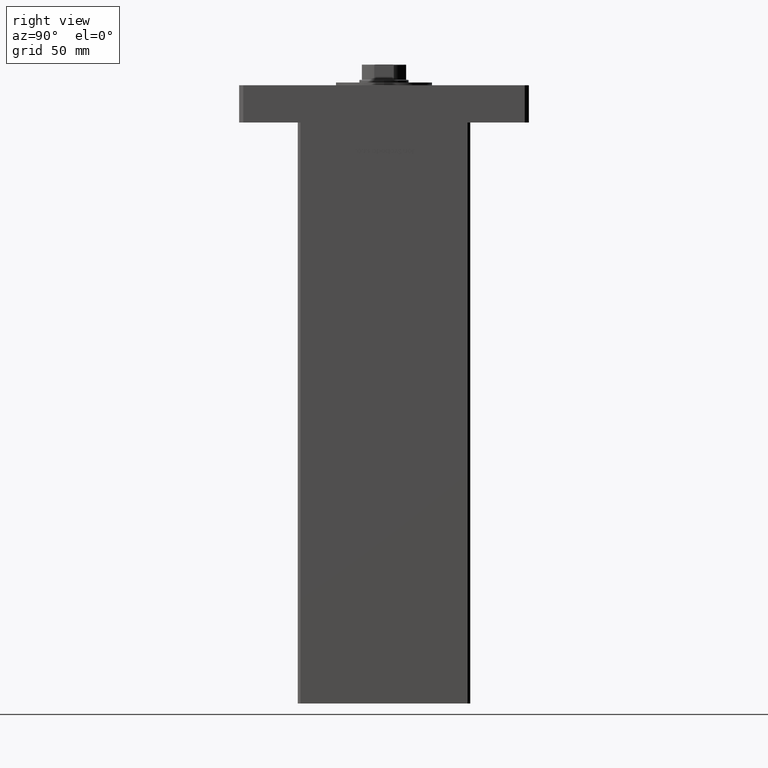
[diagram: clean part render]
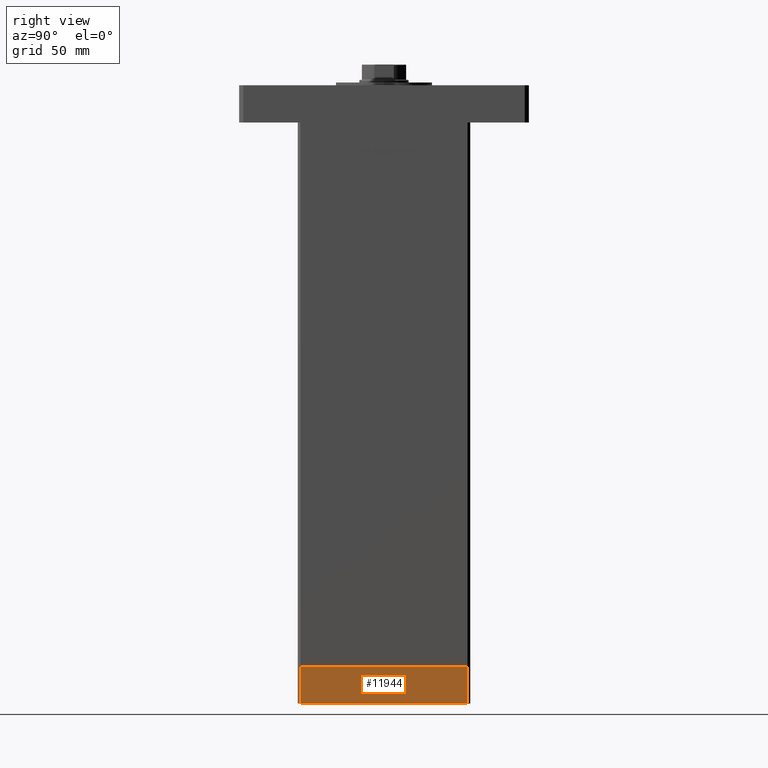
[diagram: same view with one face highlighted and labeled with its STEP entity id]
A machine part, right view. The second image highlights one B-rep face of the part: STEP entity #11944.
In plain terms, the highlighted planar face has unit normal (1, 0, 0).
Its self-contained STEP definition (entity closure, byte-faithful):
#611 = CARTESIAN_POINT ( 'NONE',  ( -75.00000000000001421, 60.49999999999997158, -27.00000000000000000 ) ) ;
#1049 = EDGE_CURVE ( 'NONE', #18081, #34259, #32887, .T. ) ;
#1803 = DIRECTION ( 'NONE',  ( 0.000000000000000000, 0.000000000000000000, 1.000000000000000000 ) ) ;
#4662 = LINE ( 'NONE', #611, #24656 ) ;
#5171 = CARTESIAN_POINT ( 'NONE',  ( -75.00000000000001421, 60.49999999999997158, -27.00000000000000000 ) ) ;
#8151 = CARTESIAN_POINT ( 'NONE',  ( -75.00000000000001421, -60.50000000000001421, 0.000000000000000000 ) ) ;
#8364 = ORIENTED_EDGE ( 'NONE', *, *, #18678, .T. ) ;
#8814 = DIRECTION ( 'NONE',  ( -1.000000000000000000, 0.000000000000000000, 0.000000000000000000 ) ) ;
#9594 = CARTESIAN_POINT ( 'NONE',  ( -75.00000000000001421, 60.49999999999997158, 0.000000000000000000 ) ) ;
#11483 = ORIENTED_EDGE ( 'NONE', *, *, #1049, .F. ) ;
#11944 = ADVANCED_FACE ( 'NONE', ( #12870 ), #29283, .T. ) ;
#12870 = FACE_OUTER_BOUND ( 'NONE', #52461, .T. ) ;
#13660 = EDGE_CURVE ( 'NONE', #31084, #36911, #4662, .T. ) ;
#14301 = CARTESIAN_POINT ( 'NONE',  ( -75.00000000000001421, 60.49999999999997158, -27.00000000000000000 ) ) ;
#17043 = DIRECTION ( 'NONE',  ( 0.000000000000000000, -1.000000000000000000, 0.000000000000000000 ) ) ;
#17515 = VECTOR ( 'NONE', #40430, 1000.000000000000000 ) ;
#18081 = VERTEX_POINT ( 'NONE', #9594 ) ;
#18678 = EDGE_CURVE ( 'NONE', #36911, #34259, #32548, .T. ) ;
#23719 = AXIS2_PLACEMENT_3D ( 'NONE', #45707, #8814, #1803 ) ;
#24656 = VECTOR ( 'NONE', #17043, 1000.000000000000000 ) ;
#28302 = ORIENTED_EDGE ( 'NONE', *, *, #30238, .F. ) ;
#29100 = VECTOR ( 'NONE', #40897, 1000.000000000000000 ) ;
#29283 = PLANE ( 'NONE',  #23719 ) ;
#30238 = EDGE_CURVE ( 'NONE', #31084, #18081, #30450, .T. ) ;
#30450 = LINE ( 'NONE', #14301, #34304 ) ;
#30983 = DIRECTION ( 'NONE',  ( 0.000000000000000000, 0.000000000000000000, 1.000000000000000000 ) ) ;
#31084 = VERTEX_POINT ( 'NONE', #5171 ) ;
#32548 = LINE ( 'NONE', #44399, #29100 ) ;
#32887 = LINE ( 'NONE', #49307, #17515 ) ;
#34259 = VERTEX_POINT ( 'NONE', #8151 ) ;
#34304 = VECTOR ( 'NONE', #30983, 1000.000000000000000 ) ;
#36911 = VERTEX_POINT ( 'NONE', #49176 ) ;
#40430 = DIRECTION ( 'NONE',  ( 0.000000000000000000, -1.000000000000000000, 0.000000000000000000 ) ) ;
#40897 = DIRECTION ( 'NONE',  ( 0.000000000000000000, 0.000000000000000000, 1.000000000000000000 ) ) ;
#44399 = CARTESIAN_POINT ( 'NONE',  ( -75.00000000000001421, -60.50000000000001421, -27.00000000000000000 ) ) ;
#45707 = CARTESIAN_POINT ( 'NONE',  ( -75.00000000000001421, 60.49999999999997158, -27.00000000000000000 ) ) ;
#49176 = CARTESIAN_POINT ( 'NONE',  ( -75.00000000000001421, -60.50000000000001421, -27.00000000000000000 ) ) ;
#49307 = CARTESIAN_POINT ( 'NONE',  ( -75.00000000000001421, 60.49999999999997158, 0.000000000000000000 ) ) ;
#49629 = ORIENTED_EDGE ( 'NONE', *, *, #13660, .T. ) ;
#52461 = EDGE_LOOP ( 'NONE', ( #11483, #28302, #49629, #8364 ) ) ;